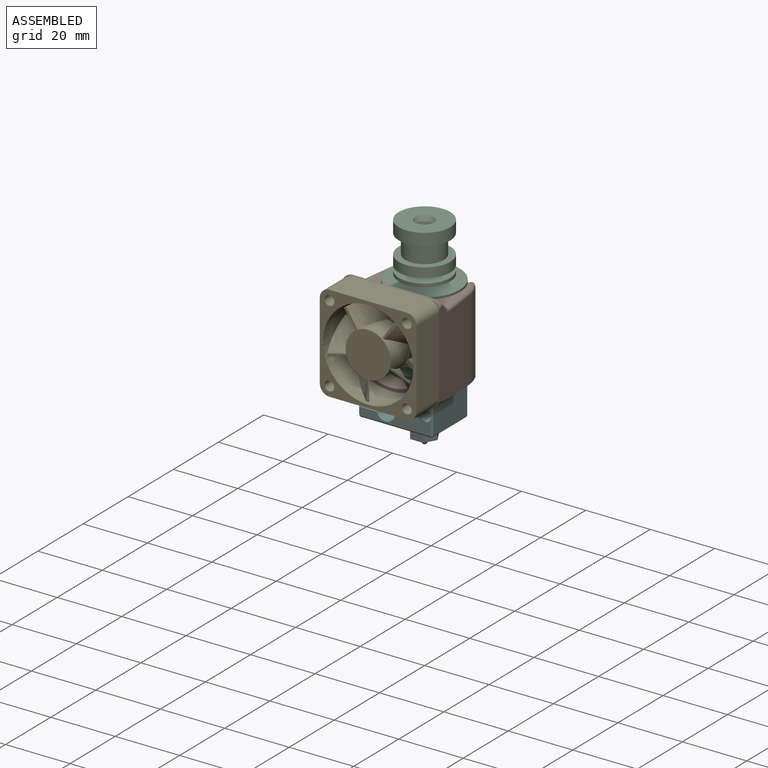
[diagram: assembled view]
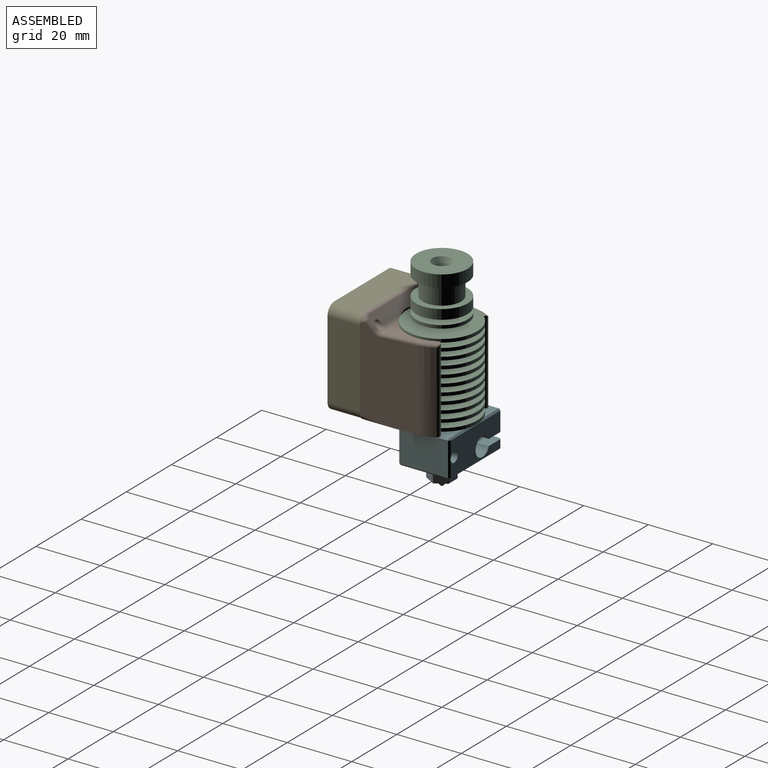
[diagram: assembled view, second angle]
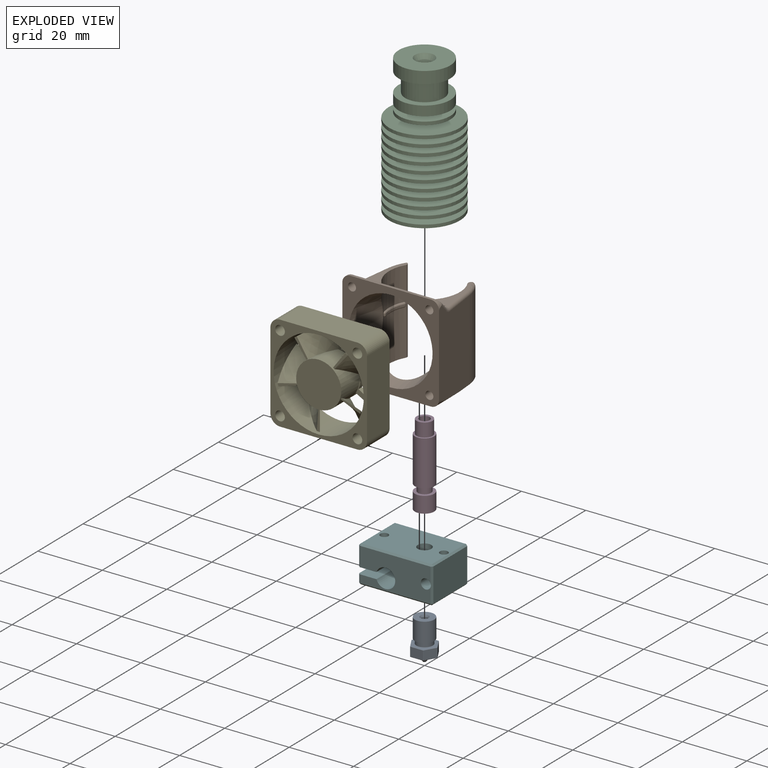
[diagram: exploded view]
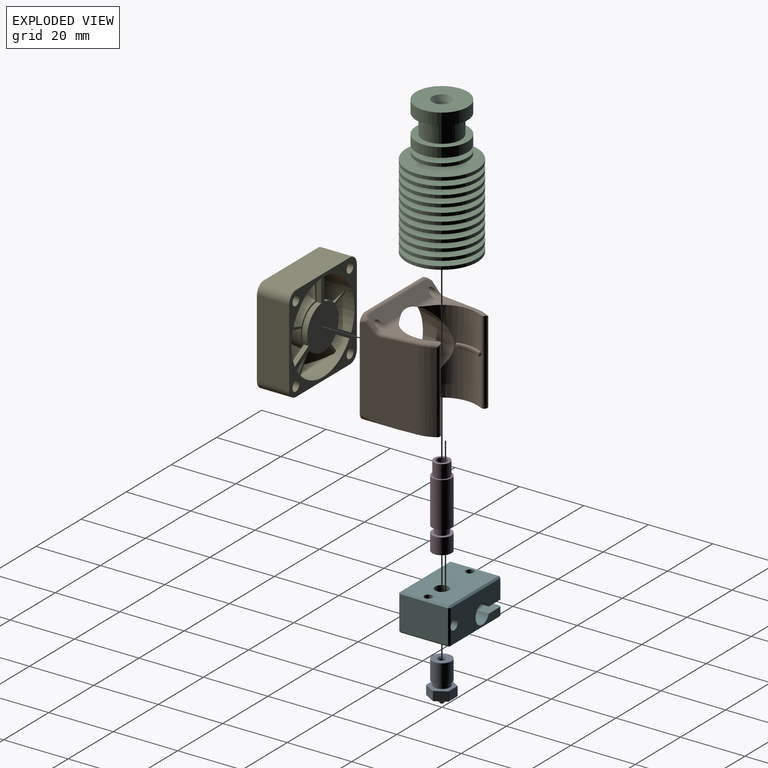
[diagram: exploded view, second angle]
ASSEMBLY  parts=6 mates=5
PART A: 51 faces, bbox 8x7x12.5 mm
  f0: plane 0.88x0.88mm, normal (0,0,-1), area 0.5mm2, adj f1,f11
  f1: cone r=0.44mm half-angle=38deg, axis (0,0,1), area 18.8mm2, adj f0,f48
  f2: plane 7.85x6.8mm, normal (0,0,-1), area 26.9mm2, adj f25,f30,f36,f41,f44,f47,f48
  f3: plane 7.85x6.8mm, normal (0,0,1), area 18.8mm2, adj f18,f22,f23,f32,f33,f34,f49
  f4: cylinder r=2.5mm len=5mm, axis (0,0,1), area 20.4mm2, adj f49,f50
  f5: plane 6x6mm, normal (0,0,-1), area 7mm2, adj f6,f50
  f6: cylinder r=3mm len=6mm, axis (0,0,1), area 113.1mm2, adj f5,f7
  f7: plane 6x6mm, normal (0,0,1), area 23mm2, adj f6,f8
  f8: cone r=1mm half-angle=30deg, axis (0,0,1), area 4.3mm2, adj f7,f9
  f9: cylinder r=1mm len=10.02mm, axis (0,0,1), area 63mm2, adj f8,f10
  f10: cone r=1mm half-angle=30deg, axis (0,0,1), area 6.1mm2, adj f9,f11
  f11: cylinder r=0.17mm len=0.53mm, axis (0,0,1), area 0.6mm2, adj f0,f10
  f12: plane 3.4x2.8mm, normal (-0.87,0.5,0), area 11mm2, adj f31,f32,f41,f42
  f13: plane 3.4x2.8mm, normal (-0.87,-0.5,0), area 11mm2, adj f33,f42,f43,f47
  f14: plane 3.93x2.8mm, normal (0,-1,0), area 11mm2, adj f34,f35,f43,f44
  f15: plane 3.4x2.8mm, normal (0.87,-0.5,0), area 11mm2, adj f23,f24,f35,f36
  f16: plane 3.4x2.8mm, normal (0.87,0.5,0), area 11mm2, adj f18,f21,f24,f25
  f17: plane 3.93x2.8mm, normal (0,1,0), area 11mm2, adj f21,f22,f30,f31
  f18: plane 3.45x2.05mm, normal (0.61,0.35,0.71), area 0.6mm2, adj f3,f16,f19,f20
  f19: plane 0.1x0.1mm, normal (0.38,0.65,0.65), area 0mm2, adj f18,f21,f22
  f20: plane 0.1x0.1mm, normal (0.76,0,0.65), area 0mm2, adj f18,f23,f24
  f21: plane 2.8x0.09mm, normal (0.5,0.87,0), area 0.3mm2, adj f16,f17,f19,f26
  f22: plane 3.93x0.1mm, normal (0,0.71,0.71), area 0.6mm2, adj f3,f17,f19,f27
  f23: plane 3.45x2.05mm, normal (0.61,-0.35,0.71), area 0.6mm2, adj f3,f15,f20,f28
  f24: plane 2.8x0.1mm, normal (1,0,0), area 0.3mm2, adj f15,f16,f20,f29
  f25: plane 3.45x2.05mm, normal (0.61,0.35,-0.71), area 0.6mm2, adj f2,f16,f26,f29
  f26: plane 0.1x0.1mm, normal (0.38,0.65,-0.65), area 0mm2, adj f21,f25,f30
  f27: plane 0.1x0.1mm, normal (-0.38,0.65,0.65), area 0mm2, adj f22,f31,f32
  f28: plane 0.1x0.1mm, normal (0.38,-0.65,0.65), area 0mm2, adj f23,f34,f35
  f29: plane 0.1x0.1mm, normal (0.76,0,-0.65), area 0mm2, adj f24,f25,f36
  f30: plane 3.93x0.1mm, normal (0,0.71,-0.71), area 0.6mm2, adj f2,f17,f26,f37
  f31: plane 2.8x0.09mm, normal (-0.5,0.87,0), area 0.3mm2, adj f12,f17,f27,f37
  f32: plane 3.45x2.05mm, normal (-0.61,0.35,0.71), area 0.6mm2, adj f3,f12,f27,f38
  f33: plane 3.45x2.05mm, normal (-0.61,-0.35,0.71), area 0.6mm2, adj f3,f13,f38,f39
  f34: plane 3.93x0.1mm, normal (0,-0.71,0.71), area 0.6mm2, adj f3,f14,f28,f39
  f35: plane 2.8x0.09mm, normal (0.5,-0.87,0), area 0.3mm2, adj f14,f15,f28,f40
  f36: plane 3.45x2.05mm, normal (0.61,-0.35,-0.71), area 0.6mm2, adj f2,f15,f29,f40
  f37: plane 0.1x0.1mm, normal (-0.38,0.65,-0.65), area 0mm2, adj f30,f31,f41
  f38: plane 0.1x0.1mm, normal (-0.76,0,0.65), area 0mm2, adj f32,f33,f42
  f39: plane 0.1x0.1mm, normal (-0.38,-0.65,0.65), area 0mm2, adj f33,f34,f43
  f40: plane 0.1x0.1mm, normal (0.38,-0.65,-0.65), area 0mm2, adj f35,f36,f44
  f41: plane 3.45x2.05mm, normal (-0.61,0.35,-0.71), area 0.6mm2, adj f2,f12,f37,f45
  f42: plane 2.8x0.1mm, normal (-1,0,0), area 0.3mm2, adj f12,f13,f38,f45
  f43: plane 2.8x0.09mm, normal (-0.5,-0.87,0), area 0.3mm2, adj f13,f14,f39,f46
  f44: plane 3.93x0.1mm, normal (0,-0.71,-0.71), area 0.6mm2, adj f2,f14,f40,f46
  f45: plane 0.1x0.1mm, normal (-0.76,0,-0.65), area 0mm2, adj f41,f42,f47
  f46: plane 0.1x0.1mm, normal (-0.38,-0.65,-0.65), area 0mm2, adj f43,f44,f47
  f47: plane 3.45x2.05mm, normal (-0.61,-0.35,-0.71), area 0.6mm2, adj f2,f13,f45,f46
  f48: torus R=2.05mm, axis (0,0,1), area 1.1mm2, adj f1,f2
  f49: torus R=2.6mm, axis (0,0,-1), area 2.5mm2, adj f3,f4
  f50: torus R=2.6mm, axis (0,0,1), area 2.5mm2, adj f4,f5
PART B: 71 faces, bbox 30x22.8x30 mm
  f0: plane 30x30mm, normal (0,-1,0), area 344.1mm2, adj f5,f6,f8,f9,f47,f48,f49,f50
  f1: plane 27.64x2.98mm, normal (0,0.71,0.71), area 103.7mm2, adj f2,f3,f4,f44,f51,f56,f58,f60
  f2: cylinder r=2.5mm len=8.52mm, axis (1,0,0), area 12.7mm2, adj f1,f10,f45,f51,f65
  f3: cylinder r=2.5mm len=8.52mm, axis (1,0,0), area 12.7mm2, adj f1,f10,f46,f51,f63
  f4: cylinder r=2.5mm len=1.77mm, axis (1,0,0), area 0.8mm2, adj f1,f46,f59,f63
  f5: plane 28.36x16.63mm, normal (-0.99,0.13,0), area 418.6mm2, adj f0,f12,f47,f50,f53,f54,f56
  f6: plane 28.36x16.63mm, normal (0.99,0.13,0), area 418.6mm2, adj f0,f7,f48,f49,f57,f59,f61
  f7: cylinder r=13mm len=25mm, axis (0,0,-1), area 123.5mm2, adj f6,f9,f13,f49,f55
  f8: plane 25x0.59mm, normal (0,0,1), area 14.6mm2, adj f0,f47,f48,f60
  f9: plane 25x21.82mm, normal (0,0,-1), area 210mm2, adj f0,f7,f10,f11,f12,f13,f49,f50
  f10: cylinder r=11mm len=26.51mm, axis (0,0,-1), area 686.9mm2, adj f2,f3,f9,f11,f13,f14,f17,f20
  f11: cylinder r=1mm len=26mm, axis (0,0,-1), area 80.9mm2, adj f9,f10,f12,f16,f45,f52
  f12: cylinder r=13mm len=25mm, axis (0,0,-1), area 123.5mm2, adj f5,f9,f11,f50,f52
  f13: cylinder r=1mm len=26mm, axis (0,0,-1), area 80.9mm2, adj f7,f9,f10,f18,f46,f55
  f14: plane 0.5x0.01mm, normal (0.28,-0.96,0), area 0mm2, adj f10,f37,f40,f43
  f15: cylinder r=10.5mm len=7.15mm, axis (0,0,-1), area 3.7mm2, adj f33,f38,f39,f43
  f16: plane 0.5x0.01mm, normal (0.48,0.87,0), area 0mm2, adj f11,f32,f33,f34
  f17: plane 0.5x0.01mm, normal (-0.28,-0.96,0), area 0mm2, adj f10,f20,f21,f22
  f18: plane 0.5x0.01mm, normal (-0.48,0.87,0), area 0mm2, adj f13,f25,f28,f31
  f19: cylinder r=10.5mm len=7.15mm, axis (0,0,-1), area 3.7mm2, adj f21,f26,f27,f31
  f20: cylinder r=0.5mm len=0.5mm, axis (-0.96,0.28,0), area 0mm2, adj f10,f17,f23
  f21: cylinder r=0.5mm len=0.6mm, axis (0,0,-1), area 0.4mm2, adj f17,f19,f23,f24
  f22: cylinder r=0.5mm len=0.5mm, axis (0.96,-0.28,0), area 0mm2, adj f10,f17,f24
  f23: sphere r=0.5mm, area 0.5mm2, adj f20,f21,f26
  f24: sphere r=0.5mm, area 0.2mm2, adj f21,f22,f27
  f25: cylinder r=0.5mm len=0.5mm, axis (0.87,0.48,0), area 0mm2, adj f10,f18,f29
  f26: torus R=11mm, axis (0,0,1), area 5.9mm2, adj f10,f19,f23,f29
  f27: torus R=11mm, axis (0,0,1), area 5.9mm2, adj f10,f19,f24,f30
  f28: cylinder r=0.5mm len=0.5mm, axis (-0.87,-0.48,0), area 0mm2, adj f10,f18,f30
  f29: sphere r=0.5mm, area 0.2mm2, adj f25,f26,f31
  f30: sphere r=0.5mm, area 0.4mm2, adj f27,f28,f31
  f31: cylinder r=0.5mm len=0.66mm, axis (0,0,-1), area 0.4mm2, adj f18,f19,f29,f30
  f32: cylinder r=0.5mm len=0.5mm, axis (0.87,-0.48,0), area 0mm2, adj f10,f16,f35
  f33: cylinder r=0.5mm len=0.66mm, axis (0,0,-1), area 0.4mm2, adj f15,f16,f35,f36
  f34: cylinder r=0.5mm len=0.5mm, axis (-0.87,0.48,0), area 0mm2, adj f10,f16,f36
  f35: sphere r=0.5mm, area 0.4mm2, adj f32,f33,f38
  f36: sphere r=0.5mm, area 0.2mm2, adj f33,f34,f39
  f37: cylinder r=0.5mm len=0.5mm, axis (-0.96,-0.28,0), area 0mm2, adj f10,f14,f41
  f38: torus R=11mm, axis (0,0,1), area 5.9mm2, adj f10,f15,f35,f41
  f39: torus R=11mm, axis (0,0,1), area 5.9mm2, adj f10,f15,f36,f42
  f40: cylinder r=0.5mm len=0.5mm, axis (0.96,0.28,0), area 0mm2, adj f10,f14,f42
  f41: sphere r=0.5mm, area 0.5mm2, adj f37,f38,f43
  f42: sphere r=0.5mm, area 0.5mm2, adj f39,f40,f43
  f43: cylinder r=0.5mm len=0.6mm, axis (0,0,-1), area 0.4mm2, adj f14,f15,f41,f42
  f44: cylinder r=2.5mm len=1.77mm, axis (1,0,0), area 0.8mm2, adj f1,f45,f54,f65
  f45: plane 15.63x6.85mm, normal (0,0,1), area 33.9mm2, adj f2,f10,f11,f44,f52,f53,f66
  f46: plane 15.63x6.85mm, normal (0,0,1), area 33.9mm2, adj f3,f4,f10,f13,f55,f57,f64
  f47: cylinder r=2.5mm len=2.5mm, axis (0,-1,0), area 3.2mm2, adj f0,f5,f8,f56,f58
  f48: cylinder r=2.5mm len=2.5mm, axis (0,-1,0), area 3.2mm2, adj f0,f6,f8,f61,f62
  f49: cylinder r=2.5mm len=18.57mm, axis (0,-1,0), area 28mm2, adj f0,f6,f7,f9
  f50: cylinder r=2.5mm len=18.57mm, axis (0,-1,0), area 28mm2, adj f0,f5,f9,f12
  f51: cone r=13mm half-angle=12.6deg, axis (0,-1,0), area 589mm2, adj f0,f1,f2,f3,f10
  f52: torus R=12mm, axis (0,0,-1), area 8.4mm2, adj f11,f12,f45,f53
  f53: cylinder r=1mm len=10.6mm, axis (0.13,0.99,0), area 16.6mm2, adj f5,f45,f52,f54
  f54: bspline ~2.48x1.73mm, area 3.5mm2, adj f5,f44,f53,f56
  f55: torus R=12mm, axis (0,0,-1), area 8.4mm2, adj f7,f13,f46,f57
  f56: cylinder r=1mm len=3.08mm, axis (0.09,0.7,-0.7), area 4.8mm2, adj f1,f5,f47,f54,f58
  f57: cylinder r=1mm len=10.6mm, axis (0.13,-0.99,0), area 16.6mm2, adj f6,f46,f55,f59
  f58: bspline ~2.29x1.61mm, area 2.4mm2, adj f1,f47,f56,f60
  f59: bspline ~3.19x1.81mm, area 3.5mm2, adj f4,f6,f57,f61
  f60: cylinder r=1mm len=25mm, axis (-1,0,0), area 19.6mm2, adj f1,f8,f58,f62
  f61: cylinder r=1mm len=3.08mm, axis (0.09,-0.7,0.7), area 4.8mm2, adj f1,f6,f48,f59,f62
  f62: bspline ~2.29x1.61mm, area 2.4mm2, adj f1,f48,f60,f61
  f63: cylinder r=1.25mm len=6.04mm, axis (0,-1,0), area 33.7mm2, adj f0,f1,f3,f4,f64
  f64: plane 1.5x0.25mm, normal (0,-1,0), area 0.3mm2, adj f46,f63
  f65: cylinder r=1.25mm len=6.04mm, axis (0,-1,0), area 33.7mm2, adj f0,f1,f2,f44,f66
  f66: plane 1.5x0.25mm, normal (0,-1,0), area 0.3mm2, adj f45,f65
  f67: plane 2.5x2.5mm, normal (0,-1,0), area 4.9mm2, adj f68
  f68: cylinder r=1.25mm len=6.04mm, axis (0,-1,0), area 47.4mm2, adj f0,f67
  f69: plane 2.5x2.5mm, normal (0,-1,0), area 4.9mm2, adj f70
  f70: cylinder r=1.25mm len=6.04mm, axis (0,-1,0), area 47.4mm2, adj f0,f69
PART C: 61 faces, bbox 22x22x42.7 mm
  f0: cylinder r=2.5mm len=5mm, axis (0,0,-1), area 61.7mm2, adj f57,f58
  f1: cylinder r=1.6mm len=21.76mm, axis (0,0,1), area 218.7mm2, adj f57,f60
  f2: plane 22x22mm, normal (0,0,1), area 272.6mm2, adj f3,f56
  f3: cylinder r=5.85mm len=11.7mm, axis (0,0,1), area 55.1mm2, adj f2,f4
  f4: plane 22x22mm, normal (0,0,-1), area 272.6mm2, adj f3,f5
  f5: cylinder r=11mm len=22mm, axis (0,0,1), area 69.1mm2, adj f4,f6
  f6: plane 22x22mm, normal (0,0,1), area 279.8mm2, adj f5,f7
  f7: cylinder r=5.65mm len=11.3mm, axis (0,0,1), area 53.2mm2, adj f6,f8
  f8: plane 22x22mm, normal (0,0,-1), area 279.8mm2, adj f7,f9
  f9: cylinder r=11mm len=22mm, axis (0,0,1), area 69.1mm2, adj f8,f10
  f10: plane 22x22mm, normal (0,0,1), area 286.8mm2, adj f9,f11
  f11: cylinder r=5.45mm len=10.9mm, axis (0,0,1), area 51.4mm2, adj f10,f12
  f12: plane 22x22mm, normal (0,0,-1), area 286.8mm2, adj f11,f13
  f13: cylinder r=11mm len=22mm, axis (0,0,1), area 69.1mm2, adj f12,f14
  f14: plane 22x22mm, normal (0,0,1), area 293.5mm2, adj f13,f15
  f15: cylinder r=5.25mm len=10.5mm, axis (0,0,1), area 49.5mm2, adj f14,f16
  f16: plane 22x22mm, normal (0,0,-1), area 293.5mm2, adj f15,f17
  f17: cylinder r=11mm len=22mm, axis (0,0,1), area 69.1mm2, adj f16,f18
  f18: plane 22x22mm, normal (0,0,1), area 300mm2, adj f17,f19
  f19: cylinder r=5.05mm len=10.1mm, axis (0,0,1), area 47.6mm2, adj f18,f20
  f20: plane 22x22mm, normal (0,0,-1), area 300mm2, adj f19,f21
  f21: cylinder r=11mm len=22mm, axis (0,0,1), area 69.1mm2, adj f20,f22
  f22: plane 22x22mm, normal (0,0,1), area 306.2mm2, adj f21,f23
  f23: cylinder r=4.85mm len=9.7mm, axis (0,0,1), area 45.7mm2, adj f22,f24
  f24: plane 22x22mm, normal (0,0,-1), area 306.2mm2, adj f23,f25
  f25: cylinder r=11mm len=22mm, axis (0,0,1), area 69.1mm2, adj f24,f26
  f26: plane 22x22mm, normal (0,0,1), area 312.2mm2, adj f25,f27
  f27: cylinder r=4.65mm len=9.3mm, axis (0,0,1), area 43.8mm2, adj f26,f28
  f28: plane 22x22mm, normal (0,0,-1), area 312.2mm2, adj f27,f29
  f29: cylinder r=11mm len=22mm, axis (0,0,1), area 69.1mm2, adj f28,f30
  f30: plane 22x22mm, normal (0,0,1), area 317.9mm2, adj f29,f31
  f31: cylinder r=4.45mm len=8.9mm, axis (0,0,1), area 41.9mm2, adj f30,f32
  f32: plane 22x22mm, normal (0,0,-1), area 317.9mm2, adj f31,f33
  f33: cylinder r=11mm len=22mm, axis (0,0,1), area 69.1mm2, adj f32,f34
  f34: plane 22x22mm, normal (0,0,1), area 323.4mm2, adj f33,f35
  f35: cylinder r=4.25mm len=8.5mm, axis (0,0,1), area 40.1mm2, adj f34,f36
  f36: plane 16x16mm, normal (0,0,-1), area 144.3mm2, adj f35,f37
  f37: cylinder r=8mm len=16mm, axis (0,0,1), area 50.3mm2, adj f36,f38
  f38: plane 16x16mm, normal (0,0,1), area 144.3mm2, adj f37,f39
  f39: cylinder r=4.25mm len=8.5mm, axis (0,0,1), area 40.1mm2, adj f38,f40
  f40: plane 16x16mm, normal (0,0,-1), area 144.3mm2, adj f39,f41
  f41: cylinder r=8mm len=16mm, axis (0,0,1), area 150.8mm2, adj f40,f42
  f42: plane 16x16mm, normal (0,0,1), area 88mm2, adj f41,f43
  f43: cylinder r=6mm len=12mm, axis (0,0,1), area 226.2mm2, adj f42,f44
  f44: plane 16x16mm, normal (0,0,-1), area 88mm2, adj f43,f45
  f45: cylinder r=8mm len=16mm, axis (0,0,1), area 186mm2, adj f44,f46
  f46: plane 16x16mm, normal (0,0,1), area 172.8mm2, adj f45,f60
  f47: plane 22x22mm, normal (0,0,-1), area 358.5mm2, adj f48,f59
  f48: cylinder r=11mm len=22mm, axis (0,0,1), area 69.1mm2, adj f47,f49
  f49: plane 22x22mm, normal (0,0,1), area 257.4mm2, adj f48,f50
  f50: cylinder r=6.25mm len=12.5mm, axis (0,0,1), area 58.9mm2, adj f49,f51
  f51: plane 22x22mm, normal (0,0,-1), area 257.4mm2, adj f50,f52
  f52: cylinder r=11mm len=22mm, axis (0,0,1), area 69.1mm2, adj f51,f53
  f53: plane 22x22mm, normal (0,0,1), area 265.1mm2, adj f52,f54
  f54: cylinder r=6.05mm len=12.1mm, axis (0,0,1), area 57mm2, adj f53,f55
  f55: plane 22x22mm, normal (0,0,-1), area 265.1mm2, adj f54,f56
  f56: cylinder r=11mm len=22mm, axis (0,0,1), area 69.1mm2, adj f2,f55
  f57: cone r=0mm half-angle=59deg, axis (0,0,-1), area 13.5mm2, adj f0,f1
  f58: cone r=0mm half-angle=59deg, axis (0,0,-1), area 2.3mm2, adj f0,f59
  f59: cylinder r=2.62mm len=14mm, axis (0,0,-1), area 230.9mm2, adj f47,f58
  f60: cone r=1.6mm half-angle=30.3deg, axis (0,0,1), area 40.2mm2, adj f1,f46
PART D: 10 faces, bbox 6x6x25.3 mm
  f0: plane 4.9x4.9mm, normal (0,0,1), area 10.8mm2, adj f8,f9
  f1: plane 6x6mm, normal (0,0,-1), area 20.2mm2, adj f2,f9
  f2: cylinder r=3mm len=6mm, axis (0,0,1), area 94.2mm2, adj f1,f3
  f3: plane 6x6mm, normal (0,0,1), area 15.1mm2, adj f2,f4
  f4: cylinder r=2.05mm len=4.1mm, axis (0,0,1), area 27mm2, adj f3,f5
  f5: plane 6x6mm, normal (0,0,-1), area 15.1mm2, adj f4,f6
  f6: cylinder r=3mm len=14mm, axis (0,0,1), area 263.9mm2, adj f5,f7
  f7: plane 6x6mm, normal (0,0,1), area 9.4mm2, adj f6,f8
  f8: cylinder r=2.45mm len=4.9mm, axis (0,0,1), area 64.7mm2, adj f0,f7
  f9: cylinder r=1.6mm len=25.3mm, axis (0,0,1), area 254.3mm2, adj f0,f1
PART E: 49 faces, bbox 30x12.7x30 mm
  f0: plane 5.57x4.57mm, normal (0,-1,0), area 4.6mm2, adj f4,f45,f46,f47
  f1: plane 5.79x4.23mm, normal (0,-1,0), area 4.7mm2, adj f4,f33,f34,f35
  f2: plane 6.45x2.49mm, normal (0,-1,0), area 4.6mm2, adj f4,f36,f37,f38
  f3: plane 6.52x0.95mm, normal (0,-1,0), area 4.7mm2, adj f4,f39,f40,f41
  f4: cylinder r=7mm len=14mm, axis (0,1,0), area 333.5mm2, adj f0,f1,f2,f3,f31,f32,f33,f35
  f5: plane 24x10mm, normal (0,0,1), area 240mm2, adj f6,f17,f18,f19
  f6: cylinder r=3mm len=10mm, axis (0,1,0), area 47.1mm2, adj f5,f7,f18,f19
  f7: plane 24x10mm, normal (-1,0,0), area 240mm2, adj f6,f8,f18,f19
  f8: cylinder r=3mm len=10mm, axis (0,1,0), area 47.1mm2, adj f7,f9,f18,f19
  f9: plane 24x10mm, normal (0,0,-1), area 240mm2, adj f8,f10,f18,f19
  f10: cylinder r=3mm len=10mm, axis (0,1,0), area 47.1mm2, adj f9,f11,f18,f19
  f11: plane 24x10mm, normal (1,0,0), area 240mm2, adj f10,f17,f18,f19
  f12: cylinder r=14mm len=28mm, axis (0,1,0), area 872.9mm2, adj f18,f19,f20,f22,f23,f25,f26,f28
  f13: cylinder r=1.5mm len=10mm, axis (0,1,0), area 94.2mm2, adj f18,f19
  f14: cylinder r=1.5mm len=10mm, axis (0,1,0), area 94.2mm2, adj f18,f19
  f15: cylinder r=1.5mm len=10mm, axis (0,1,0), area 94.2mm2, adj f18,f19
  f16: cylinder r=1.5mm len=10mm, axis (0,1,0), area 94.2mm2, adj f18,f19
  f17: cylinder r=3mm len=10mm, axis (0,1,0), area 47.1mm2, adj f5,f11,f18,f19
  f18: plane 30x30mm, normal (0,-1,0), area 248.2mm2, adj f5,f6,f7,f8,f9,f10,f11,f12
  f19: plane 30x30mm, normal (0,1,0), area 433.7mm2, adj f5,f6,f7,f8,f9,f10,f11,f12
  f20: plane 7.02x1.5mm, normal (-1,0,0), area 10.5mm2, adj f12,f19,f21,f29
  f21: cylinder r=7mm len=9.79mm, axis (0,1,0), area 19.7mm2, adj f19,f20,f22,f29
  f22: plane 6.08x3.51mm, normal (-0.5,0,0.87), area 10.5mm2, adj f12,f19,f21,f29
  f23: plane 6.08x3.51mm, normal (0.5,0,-0.87), area 10.5mm2, adj f12,f19,f24,f29
  f24: cylinder r=7mm len=11.3mm, axis (0,1,0), area 19.7mm2, adj f19,f23,f25,f29
  f25: plane 6.08x3.51mm, normal (-0.5,0,-0.87), area 10.5mm2, adj f12,f19,f24,f29
  f26: plane 6.08x3.51mm, normal (0.5,0,0.87), area 10.5mm2, adj f12,f19,f27,f29
  f27: cylinder r=7mm len=9.79mm, axis (0,1,0), area 19.7mm2, adj f19,f26,f28,f29
  f28: plane 7.02x1.5mm, normal (1,0,0), area 10.5mm2, adj f12,f19,f27,f29
  f29: plane 24.96x21.64mm, normal (0,-1,0), area 52.7mm2, adj f12,f20,f21,f22,f23,f24,f25,f26
  f30: cylinder r=6.5mm len=13mm, axis (0,1,0), area 20.4mm2, adj f29,f32
  f31: plane 6.36x2.9mm, normal (0,-1,0), area 4.6mm2, adj f4,f42,f43,f44
  f32: plane 25.94x24.95mm, normal (0,1,0), area 44.5mm2, adj f4,f30,f33,f34,f35,f36,f37,f38
  f33: bspline ~8.1x7.56mm, area 64.5mm2, adj f1,f4,f32,f34
  f34: bspline ~11.5x10.71mm, area 7.1mm2, adj f1,f32,f33,f35
  f35: bspline ~10.71x10.55mm, area 64.5mm2, adj f1,f4,f32,f34
  f36: bspline ~11.69x10.71mm, area 64.5mm2, adj f2,f4,f32,f37
  f37: bspline ~12.49x10.71mm, area 7.1mm2, adj f2,f32,f36,f38
  f38: bspline ~8.35x7.5mm, area 64.5mm2, adj f2,f4,f32,f37
  f39: bspline ~11.35x10.71mm, area 64.5mm2, adj f3,f4,f32,f40
  f40: bspline ~8.68x7.5mm, area 7.1mm2, adj f3,f32,f39,f41
  f41: bspline ~11.53x10.71mm, area 64.5mm2, adj f3,f4,f32,f40
  f42: bspline ~10.71x10.65mm, area 64.5mm2, adj f4,f31,f32,f43
  f43: bspline ~10.84x10.71mm, area 7.1mm2, adj f31,f32,f42,f44
  f44: bspline ~8.76x8.73mm, area 64.5mm2, adj f4,f31,f32,f43
  f45: bspline ~10.71x10.58mm, area 64.5mm2, adj f0,f4,f32,f46
  f46: bspline ~7.66x7.5mm, area 7.1mm2, adj f0,f32,f45,f47
  f47: bspline ~10.71x10.48mm, area 64.5mm2, adj f0,f4,f32,f46
  f48: plane 14x14mm, normal (0,-1,0), area 153.9mm2, adj f4
PART F: 38 faces, bbox 23x16x11.5 mm
  f0: plane 15x6mm, normal (-1,0,0), area 90mm2, adj f15,f23,f31,f32
  f1: plane 22x10.5mm, normal (0,1,0), area 185.1mm2, adj f2,f4,f14,f15,f18,f24,f32,f33
  f2: cylinder r=3mm len=16mm, axis (0,-1,0), area 269mm2, adj f1,f6,f14,f15
  f3: cylinder r=1.25mm len=6.5mm, axis (0,0,-1), area 51.1mm2, adj f8,f15
  f4: cylinder r=1.55mm len=16mm, axis (0,-1,0), area 144.9mm2, adj f1,f6,f11,f12,f26,f33
  f5: plane 15x2.5mm, normal (-1,0,0), area 37.5mm2, adj f14,f16,f18,f19
  f6: plane 22x10.5mm, normal (0,-1,0), area 185.1mm2, adj f2,f4,f14,f15,f16,f20,f23,f26
  f7: plane 15x10.5mm, normal (1,0,0), area 157.5mm2, adj f25,f26,f33,f34
  f8: plane 22x15mm, normal (0,0,1), area 306.3mm2, adj f3,f11,f13,f27,f31,f34,f37
  f9: plane 22x15mm, normal (0,0,-1), area 306.3mm2, adj f10,f12,f13,f19,f20,f24,f25
  f10: cylinder r=1.25mm len=3mm, axis (0,0,-1), area 23.6mm2, adj f9,f14
  f11: cylinder r=1.25mm len=4.83mm, axis (0,0,-1), area 35.3mm2, adj f4,f8
  f12: cylinder r=1.25mm len=4.83mm, axis (0,0,-1), area 35.3mm2, adj f4,f9
  f13: cylinder r=2.1mm len=11.5mm, axis (0,0,-1), area 151.7mm2, adj f8,f9
  f14: plane 16x5.67mm, normal (0,0,1), area 85.6mm2, adj f1,f2,f5,f6,f10,f16,f18
  f15: plane 16x5.67mm, normal (0,0,-1), area 85.6mm2, adj f0,f1,f2,f3,f6,f23,f32
  f16: plane 2.5x0.5mm, normal (-0.71,-0.71,0), area 1.8mm2, adj f5,f6,f14,f17
  f17: plane 0.5x0.5mm, normal (-0.58,-0.58,-0.58), area 0.2mm2, adj f16,f19,f20
  f18: plane 2.5x0.5mm, normal (-0.71,0.71,0), area 1.8mm2, adj f1,f5,f14,f21
  f19: plane 15x0.5mm, normal (-0.71,0,-0.71), area 10.6mm2, adj f5,f9,f17,f21
  f20: plane 22x0.5mm, normal (0,-0.71,-0.71), area 15.6mm2, adj f6,f9,f17,f22
  f21: plane 0.5x0.5mm, normal (-0.58,0.58,-0.58), area 0.2mm2, adj f18,f19,f24
  f22: plane 0.5x0.5mm, normal (0.58,-0.58,-0.58), area 0.2mm2, adj f20,f25,f26
  f23: plane 6x0.5mm, normal (-0.71,-0.71,0), area 4.2mm2, adj f0,f6,f15,f28
  f24: plane 22x0.5mm, normal (0,0.71,-0.71), area 15.6mm2, adj f1,f9,f21,f29
  f25: plane 15x0.5mm, normal (0.71,0,-0.71), area 10.6mm2, adj f7,f9,f22,f29
  f26: plane 10.5x0.5mm, normal (0.71,-0.71,0), area 7.4mm2, adj f4,f6,f7,f22,f30
  f27: plane 22x0.5mm, normal (0,-0.71,0.71), area 15.6mm2, adj f6,f8,f28,f30
  f28: plane 0.5x0.5mm, normal (-0.58,-0.58,0.58), area 0.2mm2, adj f23,f27,f31
  f29: plane 0.5x0.5mm, normal (0.58,0.58,-0.58), area 0.2mm2, adj f24,f25,f33
  f30: plane 0.5x0.5mm, normal (0.58,-0.58,0.58), area 0.2mm2, adj f26,f27,f34
  f31: plane 15x0.5mm, normal (-0.71,0,0.71), area 10.6mm2, adj f0,f8,f28,f35
  f32: plane 6x0.5mm, normal (-0.71,0.71,0), area 4.2mm2, adj f0,f1,f15,f35
  f33: plane 10.5x0.5mm, normal (0.71,0.71,0), area 7.4mm2, adj f1,f4,f7,f29,f36
  f34: plane 15x0.5mm, normal (0.71,0,0.71), area 10.6mm2, adj f7,f8,f30,f36
  f35: plane 0.5x0.5mm, normal (-0.58,0.58,0.58), area 0.2mm2, adj f31,f32,f37
  f36: plane 0.5x0.5mm, normal (0.58,0.58,0.58), area 0.2mm2, adj f33,f34,f37
  f37: plane 22x0.5mm, normal (0,0.71,0.71), area 15.6mm2, adj f1,f8,f35,f36
PLACE A t=(0,0,12.5)mm
PLACE B t=(0,0,34.43)mm
PLACE C t=(0,0,62.8)mm
PLACE D t=(0,0,38.3)mm
PLACE E t=(0,-15,34.43)mm
PLACE F t=(-15,-8,6.5)mm
MATE fastened A.f1 <-> F.f13  axis (0,0,-1) through (0,0,6.5)mm
MATE fastened E.f24 <-> B.f51  axis (0,1,0) through (0,-15,34.43)mm
MATE fastened C.f0 <-> B.f10  axis (0,0,1) through (0,0,46.1)mm
MATE fastened F.f13 <-> D.f2  axis (0,0,1) through (0,0,18)mm
MATE fastened D.f2 <-> C.f0  axis (0,0,-1) through (0,0,20.1)mm
